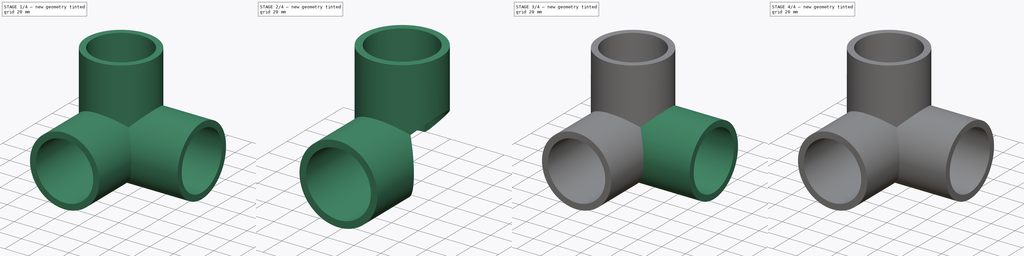
[diagram: build sequence overview — one tinted view per stage of 4, left to right]
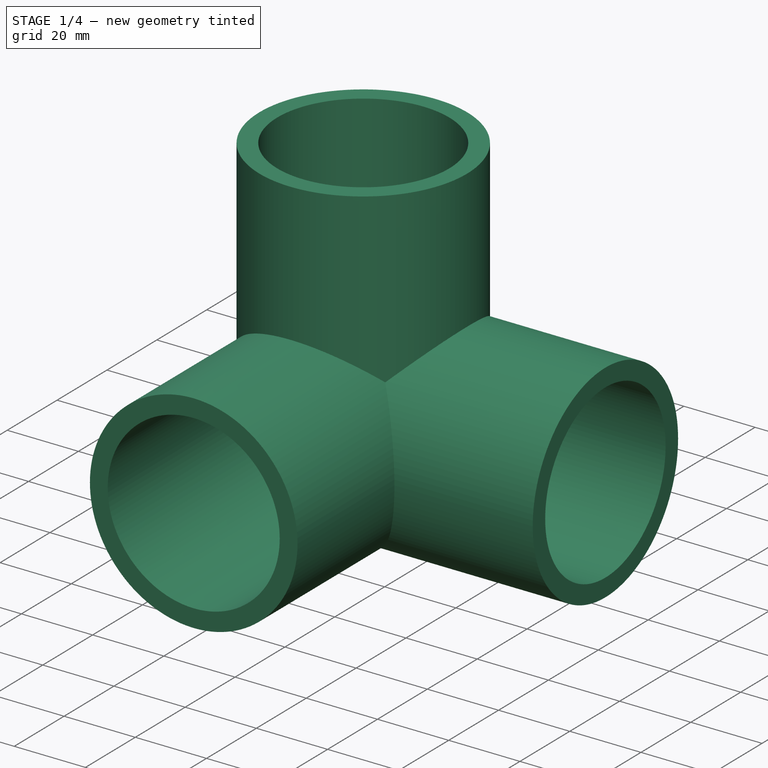
[diagram: stage 1 of 4 — iso view after this stage's code; geometry added in this stage tinted green]
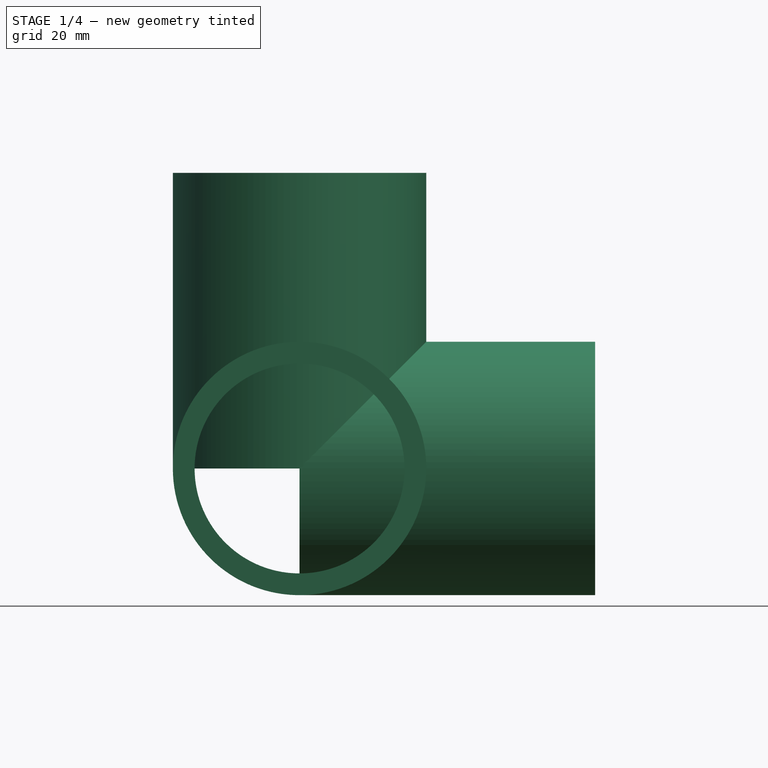
[diagram: stage 1 of 4 — front view after this stage's code; geometry added in this stage tinted green]
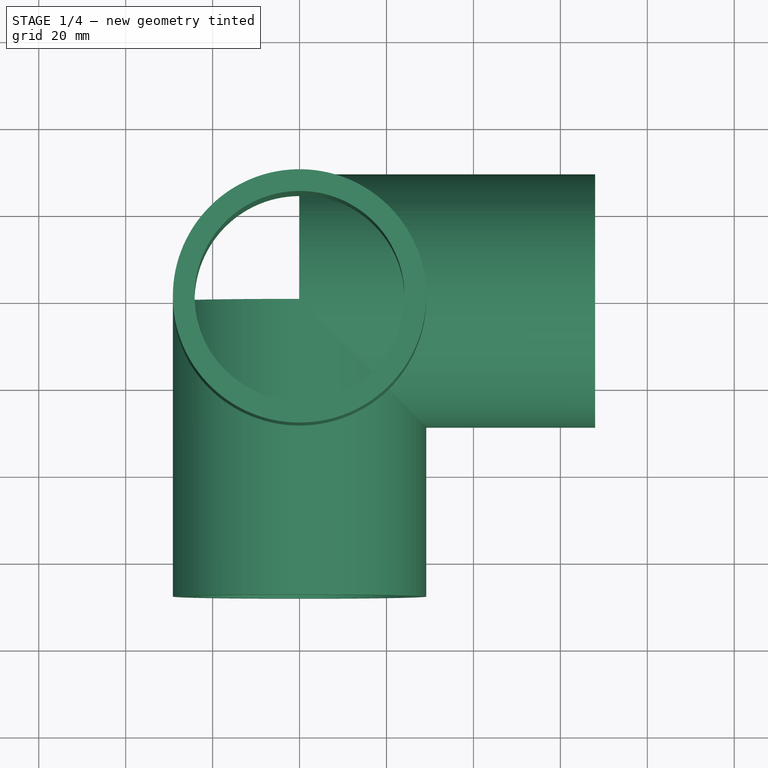
[diagram: stage 1 of 4 — top view after this stage's code; geometry added in this stage tinted green]
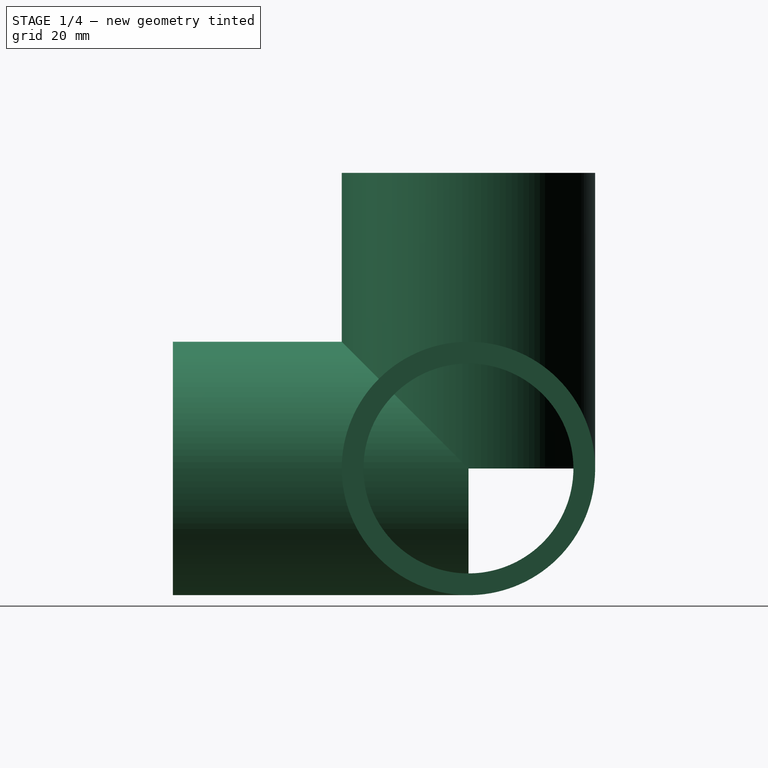
[diagram: stage 1 of 4 — right view after this stage's code; geometry added in this stage tinted green]
FCSTD DOCUMENT  (FreeCAD 0.21R33694 (Git))
Label: interclamp_d48_128_corner_top_rail
License: All rights reserved
LicenseURL: http://en.wikipedia.org/wiki/All_rights_reserved
objects: Part::FeaturePython×8, Sketcher::SketchObject×3, Part::Extrusion×3, Surface::Filling×2, App::DocumentObjectGroup×1
note: 16 computed .brp shape members not serialized (recipe doc carries the construction recipe); baked Part::Feature solids carry a one-line shape summary decoded from their .brp

FEATURE [Sketcher::SketchObject] Sketch
  AttachmentOffset = pos=(0,0,68) rot=(0,0,1;0rad)
  FullyConstrained = true
  MapMode = 5
  Placement = pos=(0,0,68) rot=(0,0,1;0rad)
  sketch-geometry (2):
    g0: Circle CenterX=0 CenterY=0 CenterZ=0 NormalX=0 NormalY=0 NormalZ=1 AngleXU=0 Radius=24.15
    g1: Circle CenterX=0 CenterY=0 CenterZ=0 NormalX=0 NormalY=0 NormalZ=1 AngleXU=0 Radius=29.15
  constraints (4):
    c: Coincident(g0,g-1)
    c: Coincident(g1,g0)
    c: Diameter(g1) = 58.3
    c: Diameter(g0) = 48.3
FEATURE [Sketcher::SketchObject] Sketch001
  AttachmentOffset = pos=(0,0,68) rot=(0,0,1;0rad)
  FullyConstrained = true
  MapMode = 5
  Placement = pos=(0,-68,1.51e-14) rot=(1,0,0;1.5708rad)
  sketch-geometry (2):
    g0: Circle CenterX=0 CenterY=0 CenterZ=0 NormalX=0 NormalY=0 NormalZ=1 AngleXU=0 Radius=24.15
    g1: Circle CenterX=0 CenterY=0 CenterZ=0 NormalX=0 NormalY=0 NormalZ=1 AngleXU=0 Radius=29.15
  constraints (4):
    c: Coincident(g0,g-1)
    c: Coincident(g1,g0)
    c: Diameter(g1) = 58.3
    c: Diameter(g0) = 48.3
FEATURE [Sketcher::SketchObject] Sketch002
  AttachmentOffset = pos=(0,0,68) rot=(0,0,1;0rad)
  FullyConstrained = true
  MapMode = 5
  Placement = pos=(68,-1.5e-14,1.5e-14) rot=(0.57735,0.57735,0.57735;2.0944rad)
  sketch-geometry (2):
    g0: Circle CenterX=0 CenterY=0 CenterZ=0 NormalX=0 NormalY=0 NormalZ=1 AngleXU=0 Radius=24.15
    g1: Circle CenterX=0 CenterY=0 CenterZ=0 NormalX=0 NormalY=0 NormalZ=1 AngleXU=0 Radius=29.15
  constraints (4):
    c: Coincident(g0,g-1)
    c: Coincident(g1,g0)
    c: Diameter(g1) = 58.3
    c: Diameter(g0) = 48.3
FEATURE [Part::Extrusion] Extrude
  Base = -> Sketch
  Dir = (0,0,1)
  DirMode = 2
  FaceMakerClass = Part::FaceMakerBullseye
  LengthFwd = 68
  LengthRev = 0
  Reversed = true
  Solid = true
  Symmetric = false
FEATURE [Part::Extrusion] Extrude001
  Base = -> Sketch001
  Dir = (0,-1,2e-16)
  DirMode = 2
  FaceMakerClass = Part::FaceMakerBullseye
  LengthFwd = 68
  LengthRev = 0
  Reversed = true
  Solid = true
  Symmetric = false
FEATURE [Part::Extrusion] Extrude002
  Base = -> Sketch002
  Dir = (1,-1e-16,1e-16)
  DirMode = 2
  FaceMakerClass = Part::FaceMakerBullseye
  LengthFwd = 68
  LengthRev = 0
  Reversed = true
  Solid = true
  Symmetric = false
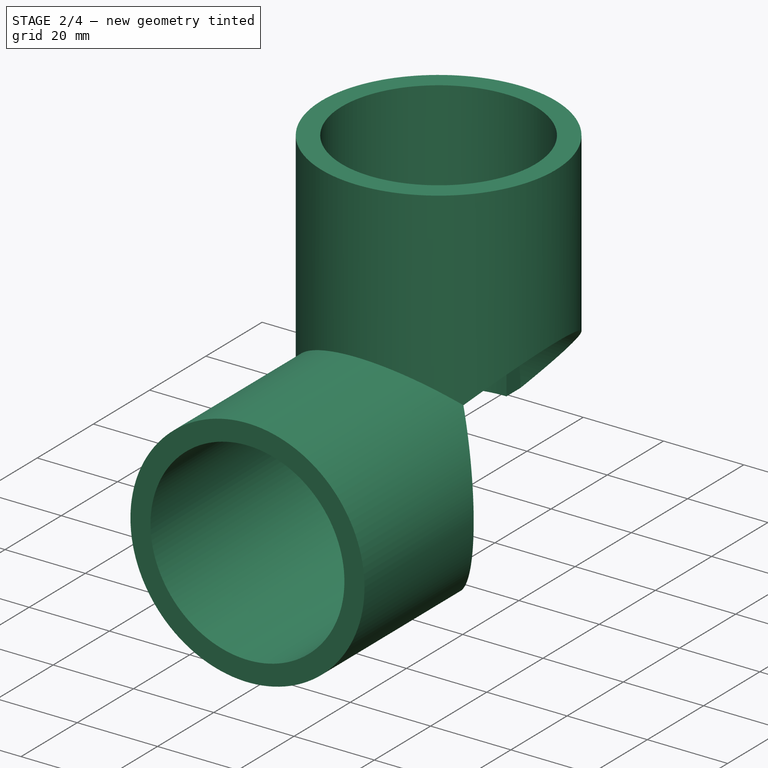
[diagram: stage 2 of 4 — iso view after this stage's code; geometry added in this stage tinted green]
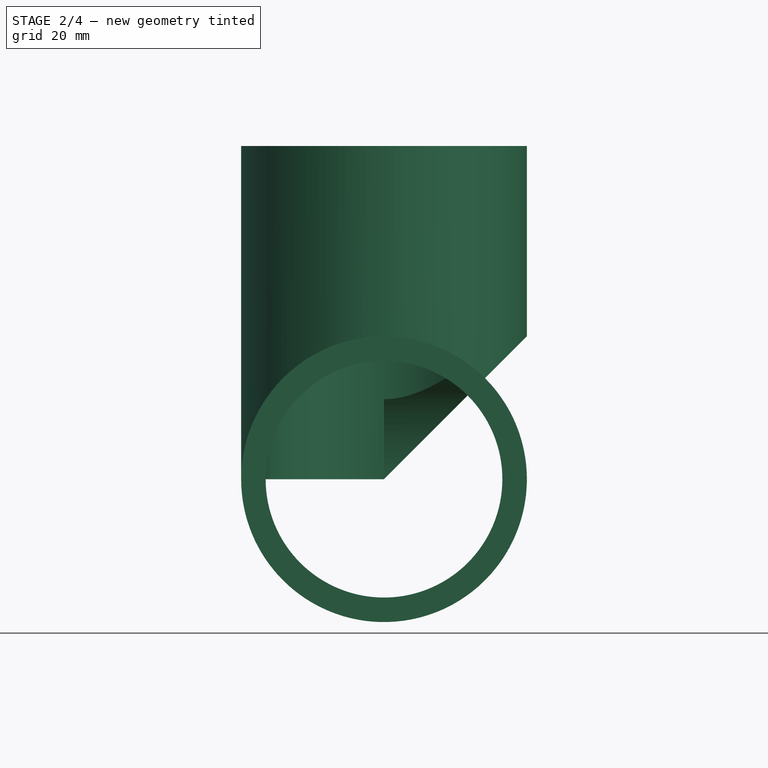
[diagram: stage 2 of 4 — front view after this stage's code; geometry added in this stage tinted green]
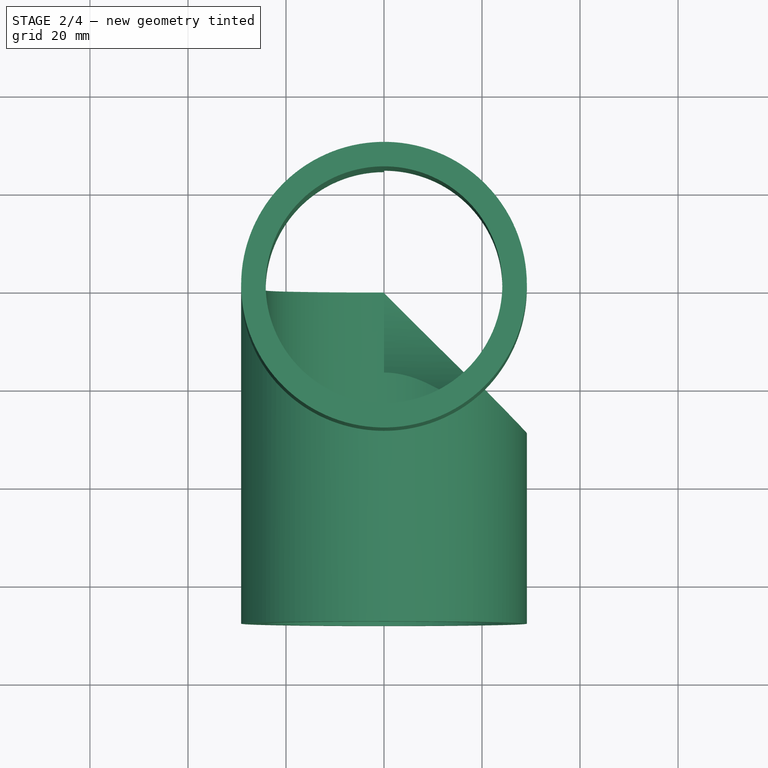
[diagram: stage 2 of 4 — top view after this stage's code; geometry added in this stage tinted green]
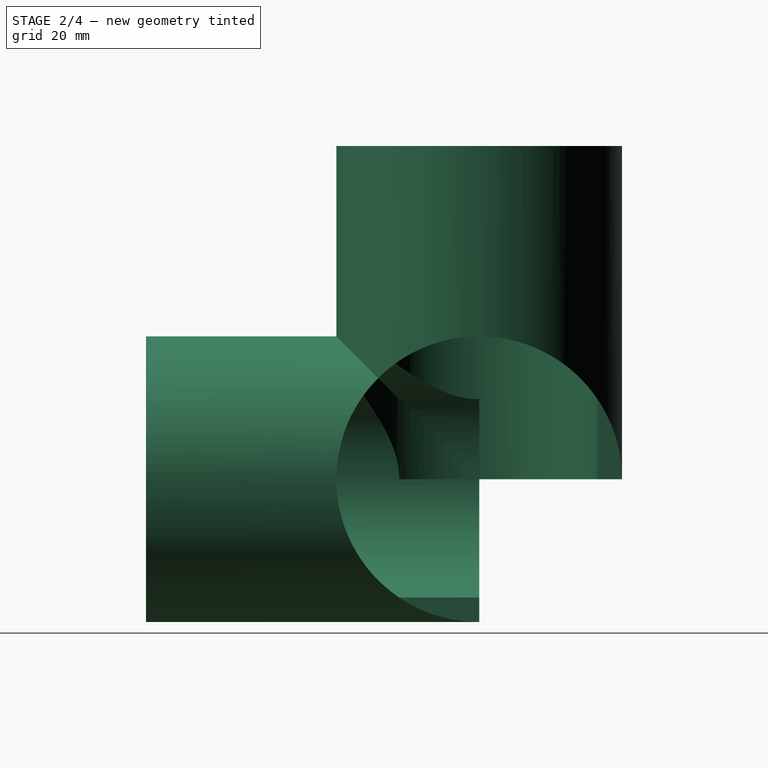
[diagram: stage 2 of 4 — right view after this stage's code; geometry added in this stage tinted green]
FEATURE [Part::FeaturePython] BooleanFragments  # WARN: FeaturePython — macro-defined, semantics opaque (R4)
  Mode = 0
  Objects = -> [Extrude,Extrude001,Extrude002]
  Tolerance = 0
FEATURE [Part::FeaturePython] BooleanFragments_child9  label="BooleanFragments.9"  # WARN: FeaturePython — macro-defined, semantics opaque (R4)
  Base = -> BooleanFragments
  FilterType = 1
  Invert = false
  OverrideMaxVal = 0
  WindowFrom = 80
  WindowTo = 100
  items = 9
FEATURE [Part::FeaturePython] BooleanFragments_child0  label="BooleanFragments.0"  # WARN: FeaturePython — macro-defined, semantics opaque (R4)
  Base = -> BooleanFragments
  FilterType = 1
  Invert = false
  OverrideMaxVal = 0
  WindowFrom = 80
  WindowTo = 100
  items = 0
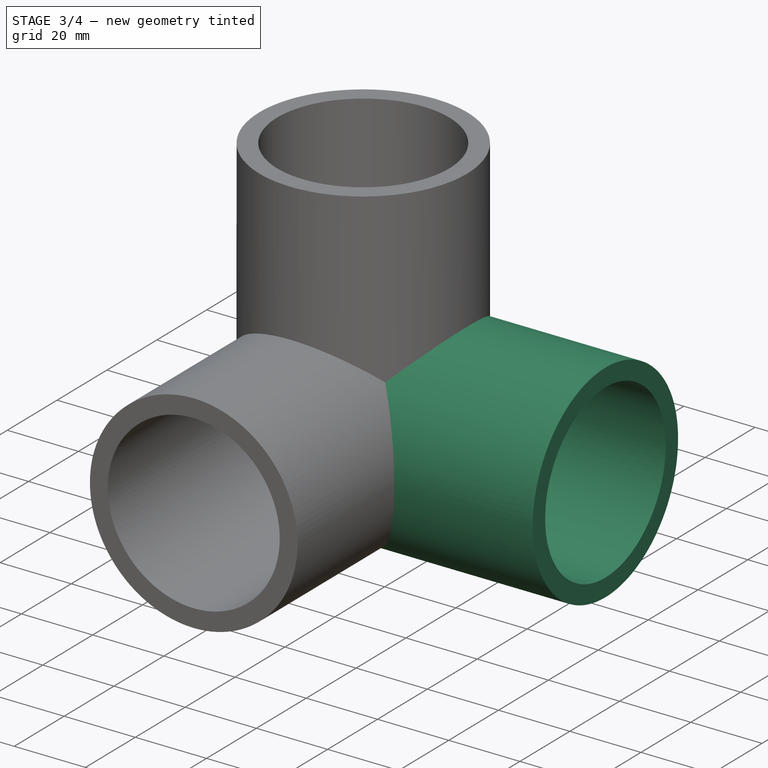
[diagram: stage 3 of 4 — iso view after this stage's code; geometry added in this stage tinted green]
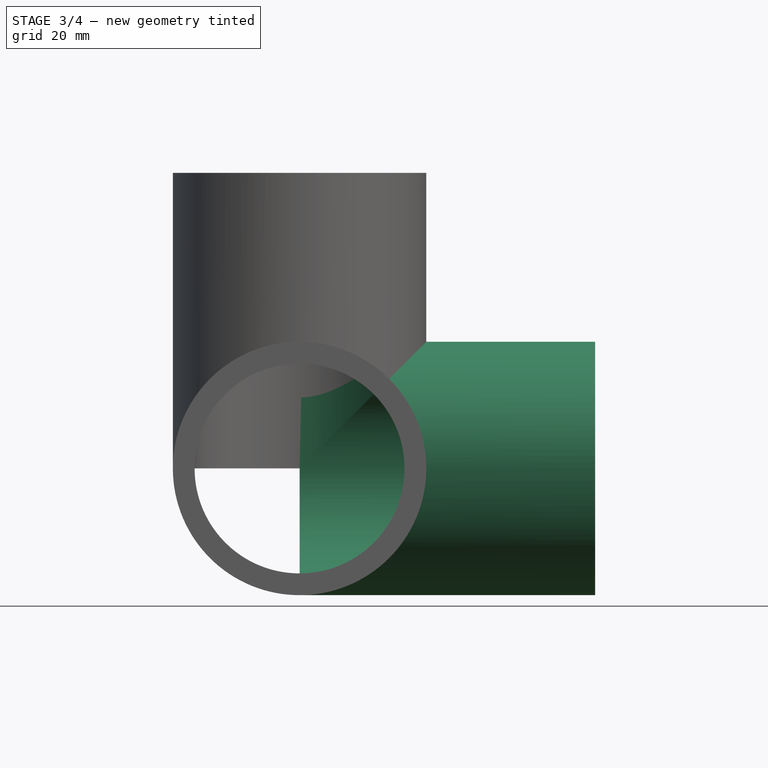
[diagram: stage 3 of 4 — front view after this stage's code; geometry added in this stage tinted green]
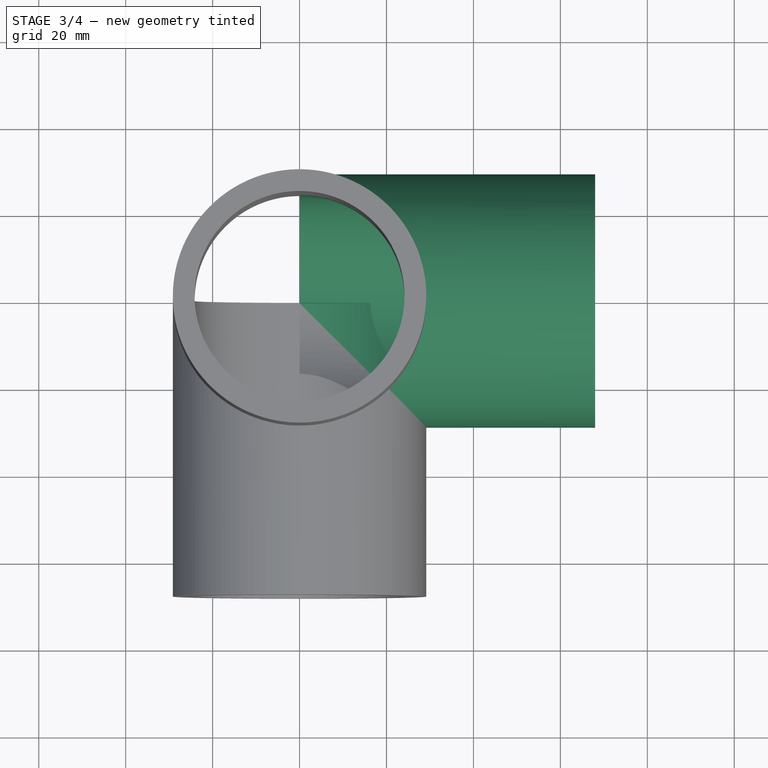
[diagram: stage 3 of 4 — top view after this stage's code; geometry added in this stage tinted green]
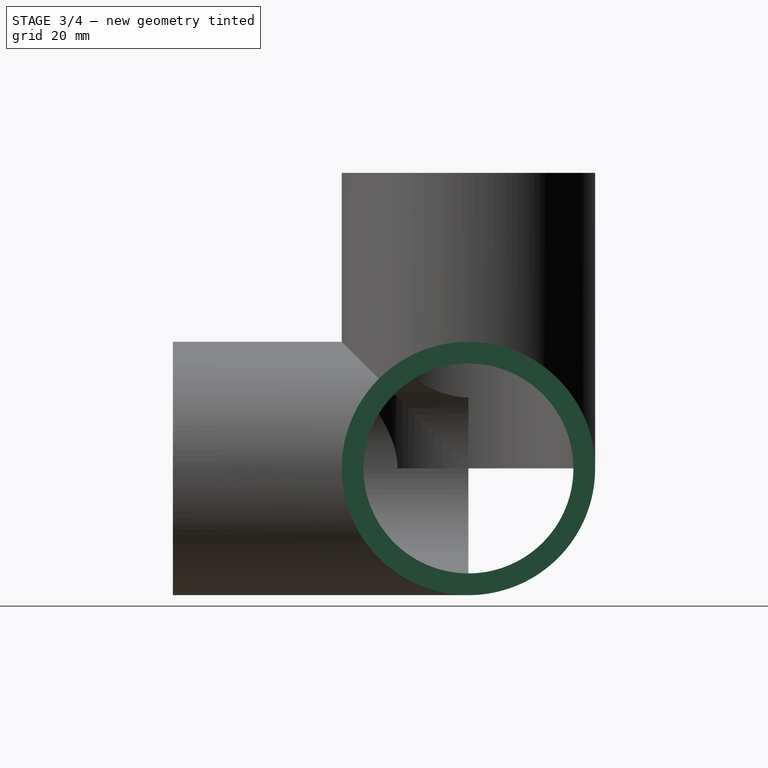
[diagram: stage 3 of 4 — right view after this stage's code; geometry added in this stage tinted green]
FEATURE [Part::FeaturePython] BooleanFragments_child15  label="BooleanFragments.15"  # WARN: FeaturePython — macro-defined, semantics opaque (R4)
  Base = -> BooleanFragments
  FilterType = 1
  Invert = false
  OverrideMaxVal = 0
  WindowFrom = 80
  WindowTo = 100
  items = 15
FEATURE [Part::FeaturePython] BooleanFragments_child1  label="BooleanFragments.1"  # WARN: FeaturePython — macro-defined, semantics opaque (R4)
  Base = -> BooleanFragments
  FilterType = 1
  Invert = false
  OverrideMaxVal = 0
  WindowFrom = 80
  WindowTo = 100
  items = 1
FEATURE [App::DocumentObjectGroup] GrExplode_BooleanFragments  label="Exploded BooleanFragments"
  Group = -> [BooleanFragments_child0,BooleanFragments_child1,BooleanFragments_child2,BooleanFragments_child4,BooleanFragments_child9,BooleanFragments_child10,BooleanFragments_child15]
FEATURE [Surface::Filling] Surface
  Anisotropy = false
  BoundaryEdges = -> [BooleanFragments_child15,BooleanFragments_child0,BooleanFragments_child9]
  BoundaryOrder = [0,0,0]
  Degree = 3
  Iterations = 2
  MaximumDegree = 8
  MaximumSegments = 9
  PointsOnCurve = 15
  TolAngular = 0.01
  TolCurvature = 0.1
  Tolerance2d = 1e-05
  Tolerance3d = 0.0001
FEATURE [Surface::Filling] Surface001
  Anisotropy = false
  BoundaryEdges = -> [BooleanFragments_child15,BooleanFragments_child0,BooleanFragments_child9]
  BoundaryOrder = [0,0,0]
  Degree = 3
  Iterations = 2
  MaximumDegree = 8
  MaximumSegments = 9
  PointsOnCurve = 15
  TolAngular = 0.01
  TolCurvature = 0.1
  Tolerance2d = 1e-05
  Tolerance3d = 0.0001
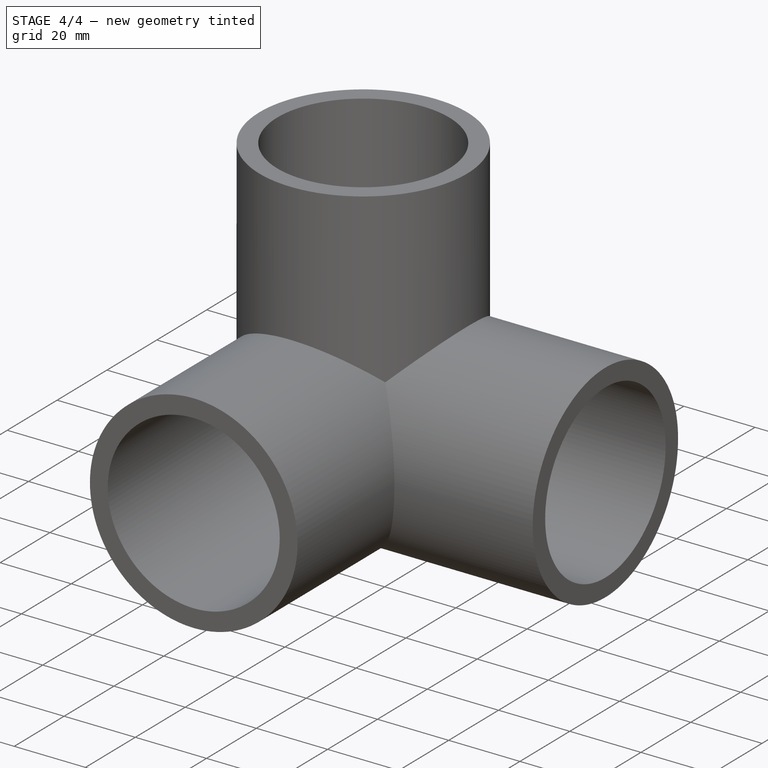
[diagram: stage 4 of 4 — iso view after this stage's code; geometry added in this stage tinted green]
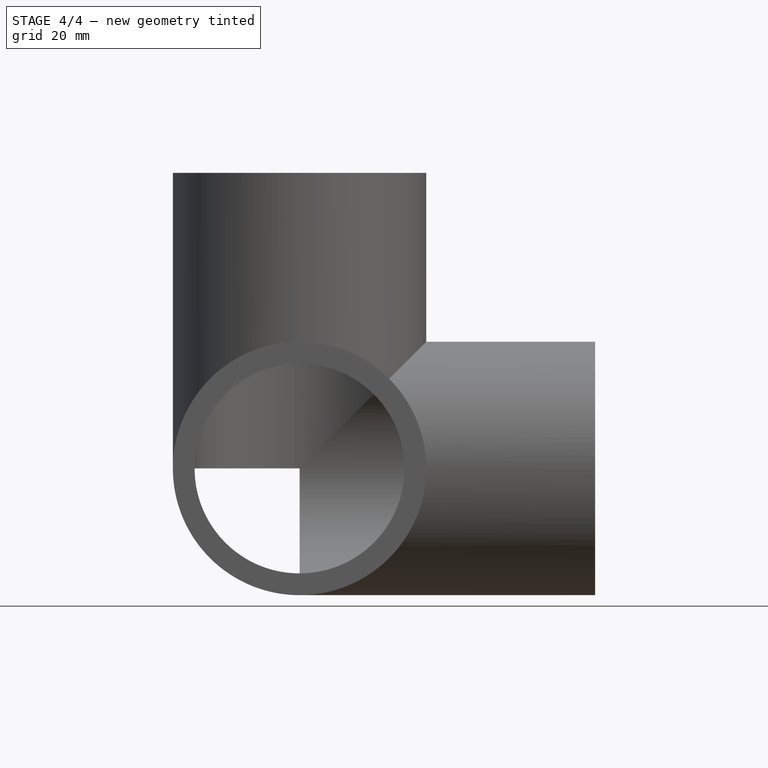
[diagram: stage 4 of 4 — front view after this stage's code; geometry added in this stage tinted green]
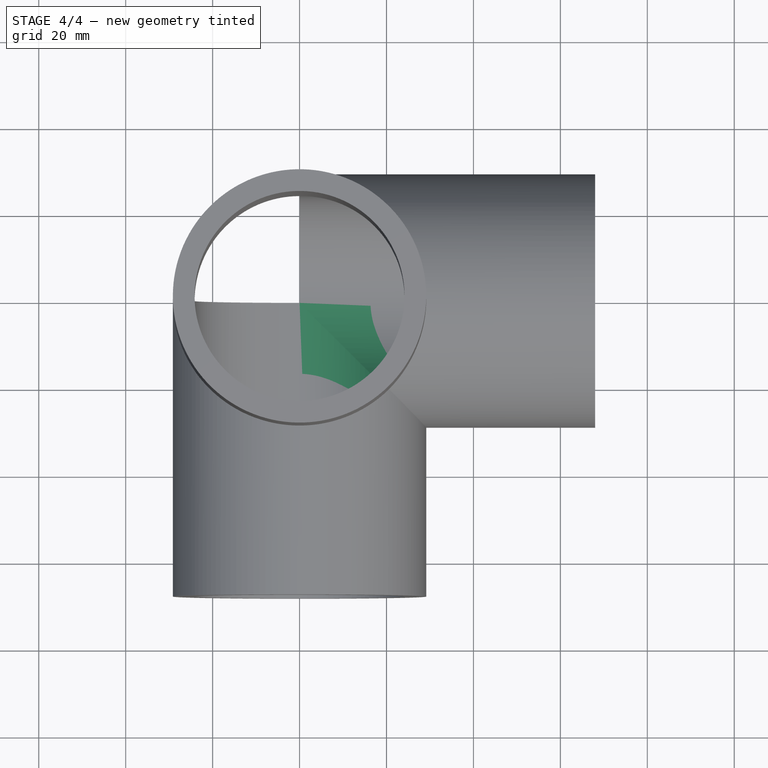
[diagram: stage 4 of 4 — top view after this stage's code; geometry added in this stage tinted green]
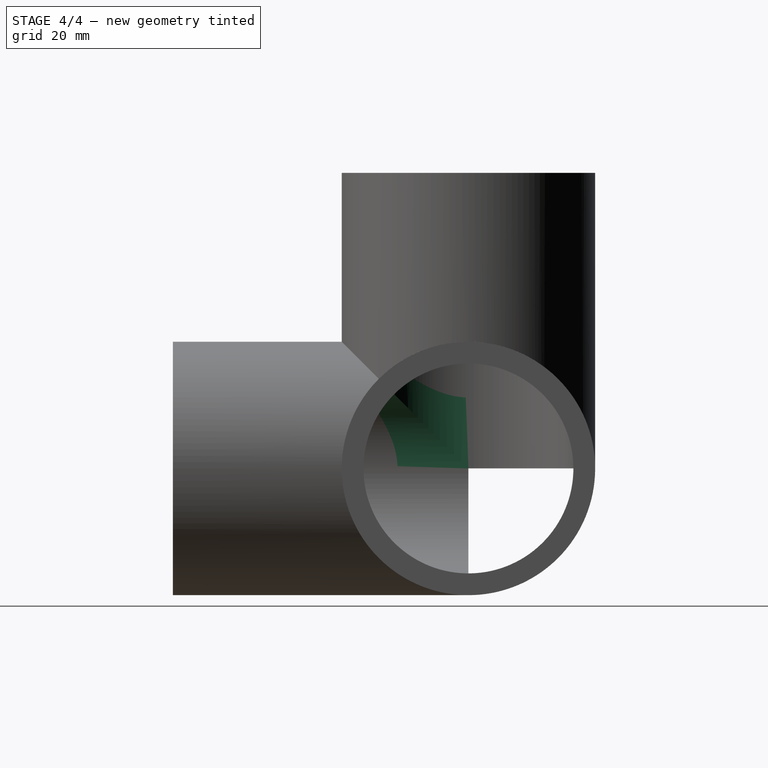
[diagram: stage 4 of 4 — right view after this stage's code; geometry added in this stage tinted green]
FEATURE [Part::FeaturePython] BooleanFragments_child2  label="BooleanFragments.2"  # WARN: FeaturePython — macro-defined, semantics opaque (R4)
  Base = -> BooleanFragments
  FilterType = 1
  Invert = false
  OverrideMaxVal = 0
  WindowFrom = 80
  WindowTo = 100
  items = 2
FEATURE [Part::FeaturePython] BooleanFragments_child4  label="BooleanFragments.4"  # WARN: FeaturePython — macro-defined, semantics opaque (R4)
  Base = -> BooleanFragments
  FilterType = 1
  Invert = false
  OverrideMaxVal = 0
  WindowFrom = 80
  WindowTo = 100
  items = 4
FEATURE [Part::FeaturePython] BooleanFragments_child10  label="BooleanFragments.10"  # WARN: FeaturePython — macro-defined, semantics opaque (R4)
  Base = -> BooleanFragments
  FilterType = 1
  Invert = false
  OverrideMaxVal = 0
  WindowFrom = 80
  WindowTo = 100
  items = 10
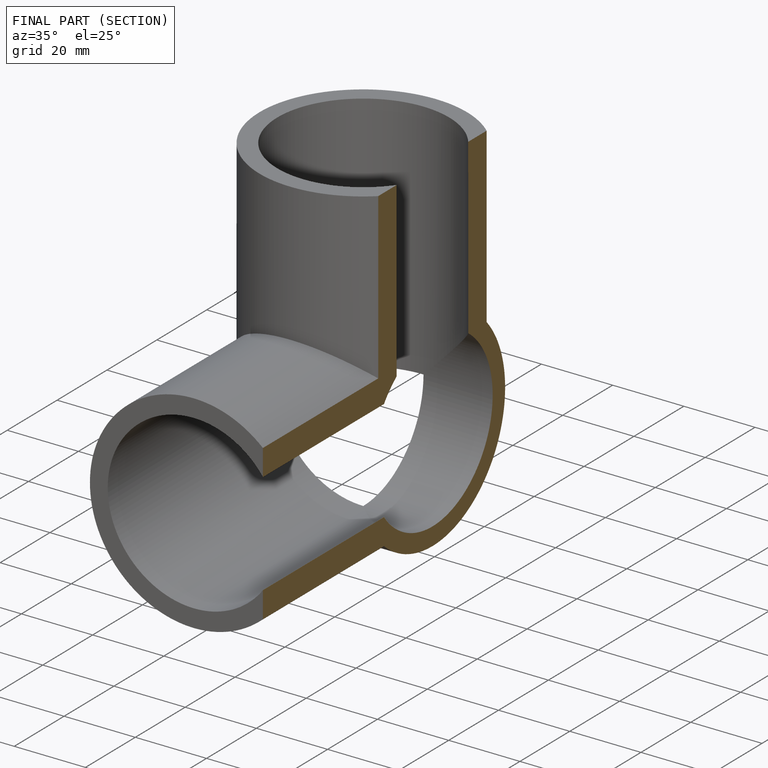
[diagram: finished part — half-section view (interior)]
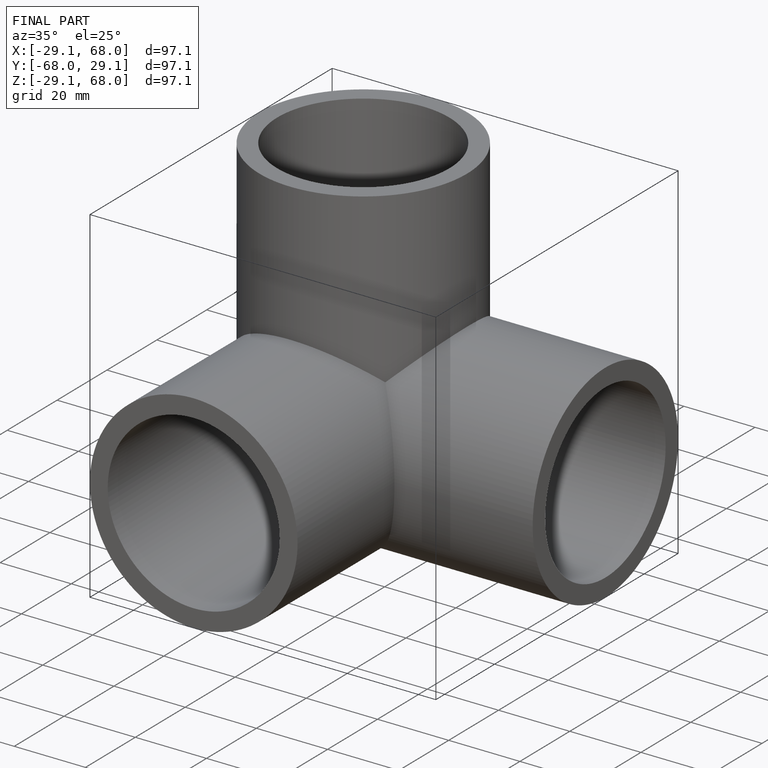
[diagram: finished part — iso view with bounding-box wireframe]
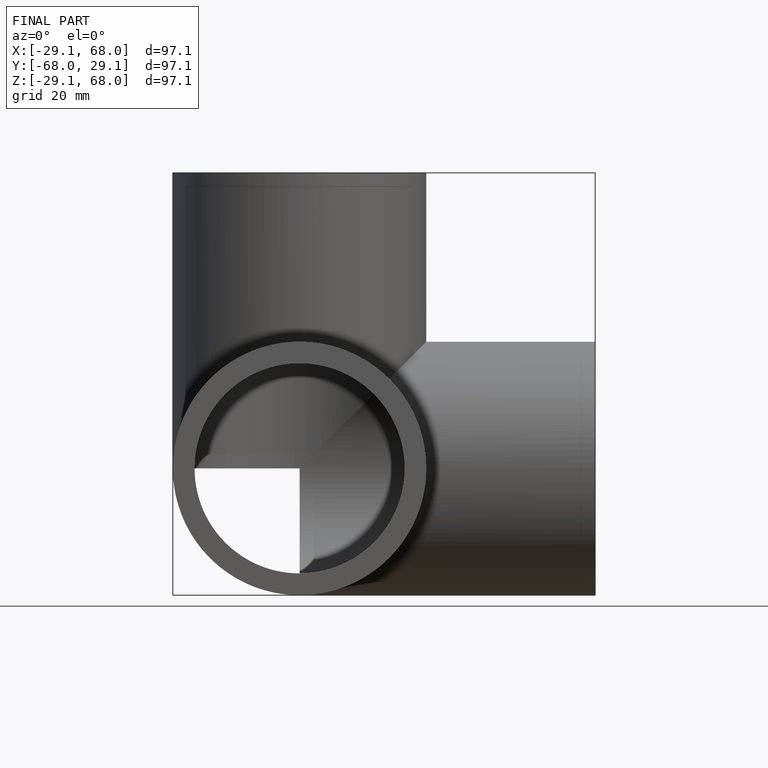
[diagram: finished part — front view with bounding-box wireframe]
